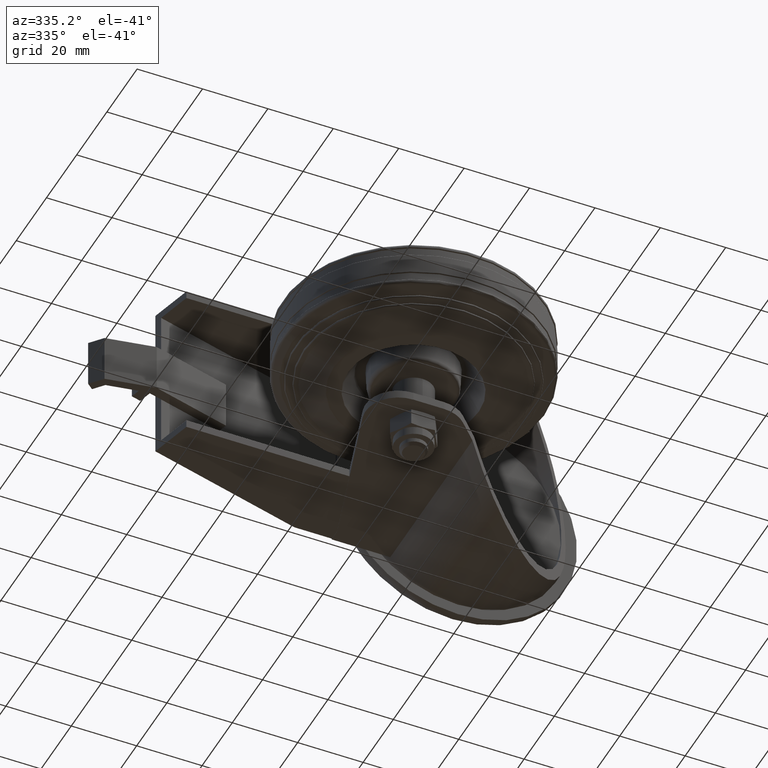
[diagram: clean part render]
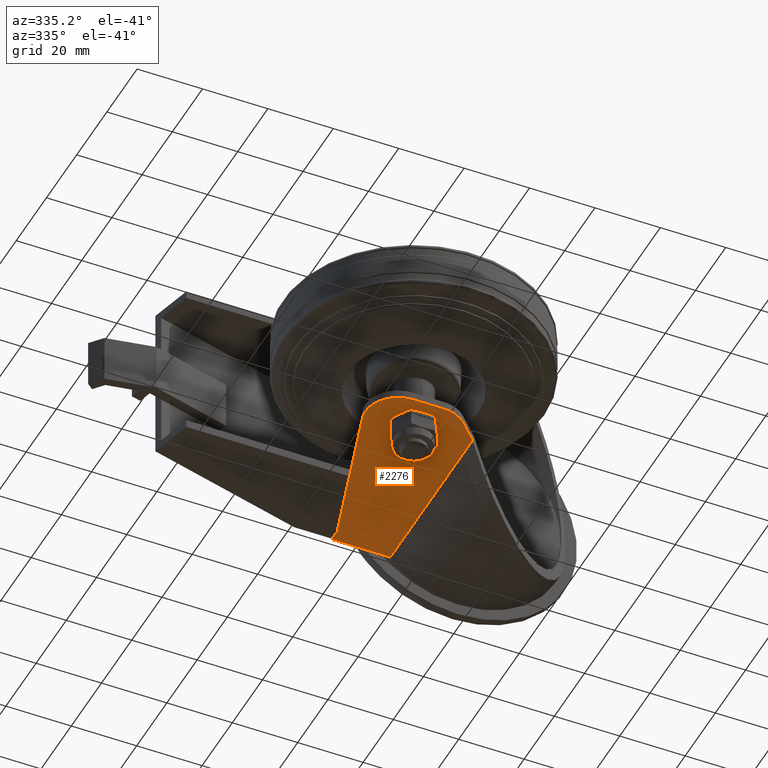
[diagram: same view with one face highlighted and labeled with its STEP entity id]
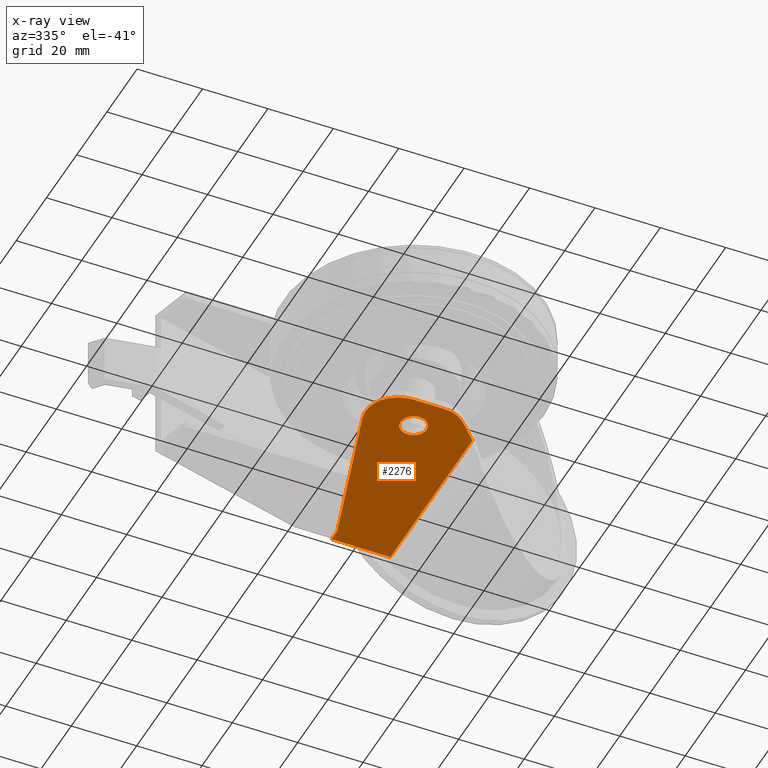
[diagram: x-ray of the same camera — body ghosted, the highlighted face saturated]
A machine part, auxiliary view. The second image highlights one B-rep face of the part: STEP entity #2276.
The next image is the same camera in x-ray: the body ghosted, the highlighted face saturated — about 0% of this face is hidden behind the body in this view.
In plain terms, the highlighted planar face has unit normal (0, 0, 1).
Its self-contained STEP definition (entity closure, byte-faithful):
#181=FACE_BOUND('',#448,.T.);
#215=PLANE('',#2557);
#295=FACE_OUTER_BOUND('',#447,.T.);
#447=EDGE_LOOP('',(#1653,#1654,#1655,#1656,#1657,#1658,#1659,#1660));
#448=EDGE_LOOP('',(#1661));
#617=CIRCLE('',#2540,10.);
#621=CIRCLE('',#2551,10.);
#625=CIRCLE('',#2558,4.);
#751=LINE('',#3571,#895);
#766=LINE('',#3607,#910);
#774=LINE('',#3635,#918);
#781=LINE('',#3648,#925);
#787=LINE('',#3672,#931);
#788=LINE('',#3673,#932);
#895=VECTOR('',#2836,1000.);
#910=VECTOR('',#2861,1000.);
#918=VECTOR('',#2887,1000.);
#925=VECTOR('',#2898,1000.);
#931=VECTOR('',#2928,1000.);
#932=VECTOR('',#2929,1000.);
#1041=VERTEX_POINT('',#3568);
#1042=VERTEX_POINT('',#3570);
#1057=VERTEX_POINT('',#3604);
#1058=VERTEX_POINT('',#3606);
#1065=VERTEX_POINT('',#3622);
#1066=VERTEX_POINT('',#3624);
#1073=VERTEX_POINT('',#3646);
#1079=VERTEX_POINT('',#3671);
#1080=VERTEX_POINT('',#3674);
#1249=EDGE_CURVE('',#1042,#1041,#751,.T.);
#1266=EDGE_CURVE('',#1057,#1058,#766,.T.);
#1274=EDGE_CURVE('',#1066,#1065,#617,.F.);
#1280=EDGE_CURVE('',#1066,#1041,#774,.T.);
#1287=EDGE_CURVE('',#1073,#1065,#781,.T.);
#1291=EDGE_CURVE('',#1073,#1058,#621,.F.);
#1300=EDGE_CURVE('',#1079,#1057,#787,.T.);
#1301=EDGE_CURVE('',#1042,#1079,#788,.T.);
#1302=EDGE_CURVE('',#1080,#1080,#625,.F.);
#1653=ORIENTED_EDGE('',*,*,#1280,.F.);
#1654=ORIENTED_EDGE('',*,*,#1274,.T.);
#1655=ORIENTED_EDGE('',*,*,#1287,.F.);
#1656=ORIENTED_EDGE('',*,*,#1291,.T.);
#1657=ORIENTED_EDGE('',*,*,#1266,.F.);
#1658=ORIENTED_EDGE('',*,*,#1300,.F.);
#1659=ORIENTED_EDGE('',*,*,#1301,.F.);
#1660=ORIENTED_EDGE('',*,*,#1249,.T.);
#1661=ORIENTED_EDGE('',*,*,#1302,.F.);
#2276=ADVANCED_FACE('',(#295,#181),#215,.F.);
#2540=AXIS2_PLACEMENT_3D('',#3625,#2876,#2877);
#2551=AXIS2_PLACEMENT_3D('',#3654,#2909,#2910);
#2557=AXIS2_PLACEMENT_3D('',#3670,#2926,#2927);
#2558=AXIS2_PLACEMENT_3D('',#3675,#2930,#2931);
#2836=DIRECTION('',(0.,-1.,0.));
#2861=DIRECTION('',(-0.283390294519664,-0.959004661600796,0.));
#2876=DIRECTION('center_axis',(0.,0.,1.));
#2877=DIRECTION('ref_axis',(1.,0.,0.));
#2887=DIRECTION('',(0.69521081600556,0.718805899606343,0.));
#2898=DIRECTION('',(1.,0.,0.));
#2909=DIRECTION('center_axis',(0.,0.,1.));
#2910=DIRECTION('ref_axis',(1.,0.,0.));
#2926=DIRECTION('center_axis',(0.,0.,1.));
#2927=DIRECTION('ref_axis',(1.,0.,0.));
#2928=DIRECTION('',(0.,-1.,0.));
#2929=DIRECTION('',(-1.,0.,0.));
#2930=DIRECTION('center_axis',(0.,0.,1.));
#2931=DIRECTION('ref_axis',(1.,0.,0.));
#3568=CARTESIAN_POINT('',(17.459340771462,-1.19174005828291,-25.));
#3570=CARTESIAN_POINT('',(17.459340771462,53.2,-25.));
#3571=CARTESIAN_POINT('',(17.459340771462,-10.,-25.));
#3604=CARTESIAN_POINT('',(-0.5,49.5,-25.));
#3606=CARTESIAN_POINT('',(-14.290046616008,2.83390294519664,-25.));
#3607=CARTESIAN_POINT('',(-13.9125893385766,4.1112342286315,-25.));
#3622=CARTESIAN_POINT('',(4.69999999999999,-10.,-25.));
#3624=CARTESIAN_POINT('',(11.8880589960634,-6.95210816005559,-25.));
#3625=CARTESIAN_POINT('Origin',(4.69999999999999,6.93889390390723E-15,-25.));
#3635=CARTESIAN_POINT('',(9.61646402621518,-9.30079984932579,-25.));
#3646=CARTESIAN_POINT('',(-4.7,-10.,-25.));
#3648=CARTESIAN_POINT('',(0.,-10.,-25.));
#3654=CARTESIAN_POINT('Origin',(-4.7,1.73472347597681E-15,-25.));
#3670=CARTESIAN_POINT('Origin',(0.,0.,-25.));
#3671=CARTESIAN_POINT('',(-0.5,53.2,-25.));
#3672=CARTESIAN_POINT('',(-0.5,0.,-25.));
#3673=CARTESIAN_POINT('',(30.,53.2,-25.));
#3674=CARTESIAN_POINT('',(4.,0.,-25.));
#3675=CARTESIAN_POINT('Origin',(0.,0.,-25.));